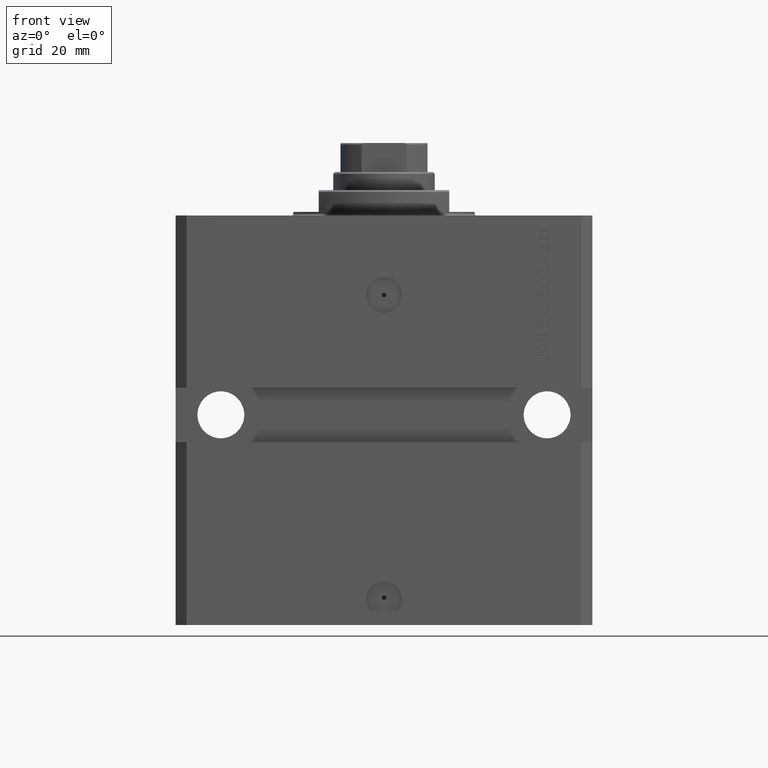
[diagram: clean part render]
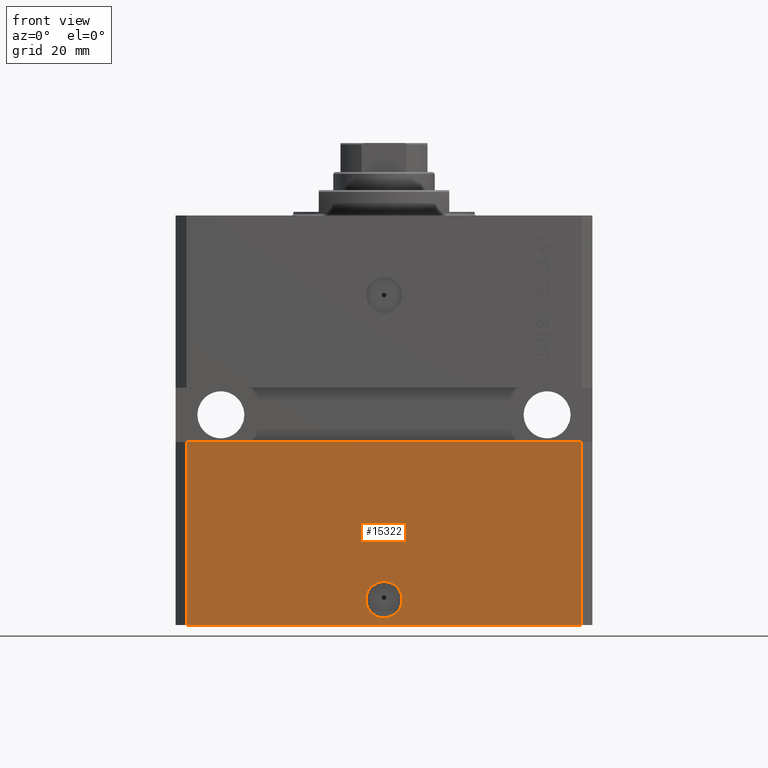
[diagram: same view with one face highlighted and labeled with its STEP entity id]
A machine part, front view. The second image highlights one B-rep face of the part: STEP entity #15322.
In plain terms, the highlighted planar face has unit normal (0, -1, 0).
Its self-contained STEP definition (entity closure, byte-faithful):
#12 = CARTESIAN_POINT ( 'NONE',  ( -54.50000000000000711, -45.00000000000000000, -62.50000000000000000 ) ) ;
#214 = EDGE_CURVE ( 'NONE', #34737, #48850, #43888, .T. ) ;
#240 = CARTESIAN_POINT ( 'NONE',  ( 54.50000000000000711, -44.99999999999998579, -113.0000000000000000 ) ) ;
#366 = AXIS2_PLACEMENT_3D ( 'NONE', #36530, #9662, #17367 ) ;
#2184 = ORIENTED_EDGE ( 'NONE', *, *, #2408, .F. ) ;
#2408 = EDGE_CURVE ( 'NONE', #8551, #21867, #33713, .T. ) ;
#2567 = EDGE_CURVE ( 'NONE', #10811, #48850, #19755, .T. ) ;
#5575 = EDGE_CURVE ( 'NONE', #8832, #34737, #10656, .T. ) ;
#6935 = CARTESIAN_POINT ( 'NONE',  ( -54.50000000000000711, -45.00000000000000000, -113.0000000000000000 ) ) ;
#7620 = VECTOR ( 'NONE', #11392, 1000.000000000000000 ) ;
#8363 = EDGE_LOOP ( 'NONE', ( #2184, #27729 ) ) ;
#8416 = EDGE_CURVE ( 'NONE', #8832, #10811, #30789, .T. ) ;
#8551 = VERTEX_POINT ( 'NONE', #12846 ) ;
#8832 = VERTEX_POINT ( 'NONE', #41774 ) ;
#9342 = ORIENTED_EDGE ( 'NONE', *, *, #214, .F. ) ;
#9662 = DIRECTION ( 'NONE',  ( 1.176083712526788232E-16, -1.000000000000000000, 0.000000000000000000 ) ) ;
#10656 = LINE ( 'NONE', #6935, #7620 ) ;
#10811 = VERTEX_POINT ( 'NONE', #240 ) ;
#11392 = DIRECTION ( 'NONE',  ( 0.000000000000000000, 0.000000000000000000, 1.000000000000000000 ) ) ;
#11765 = CARTESIAN_POINT ( 'NONE',  ( 5.729361939005967538E-15, -44.99999999999999289, -106.0000000000000000 ) ) ;
#12346 = EDGE_CURVE ( 'NONE', #21867, #8551, #21991, .T. ) ;
#12846 = CARTESIAN_POINT ( 'NONE',  ( 5.000000000000012434, -44.99999999999999289, -106.0000000000000000 ) ) ;
#15322 = ADVANCED_FACE ( 'NONE', ( #37057, #24602 ), #29327, .T. ) ;
#15909 = AXIS2_PLACEMENT_3D ( 'NONE', #21375, #20870, #29087 ) ;
#17367 = DIRECTION ( 'NONE',  ( 1.000000000000000000, 0.000000000000000000, 0.000000000000000000 ) ) ;
#18501 = ORIENTED_EDGE ( 'NONE', *, *, #8416, .T. ) ;
#19755 = LINE ( 'NONE', #38177, #24177 ) ;
#19933 = DIRECTION ( 'NONE',  ( 1.176083712526788232E-16, -1.000000000000000000, 0.000000000000000000 ) ) ;
#20870 = DIRECTION ( 'NONE',  ( 1.273191542001326317E-16, -1.000000000000000000, 0.000000000000000000 ) ) ;
#21375 = CARTESIAN_POINT ( 'NONE',  ( -54.50000000000000711, -45.00000000000000000, -113.0000000000000000 ) ) ;
#21867 = VERTEX_POINT ( 'NONE', #28221 ) ;
#21991 = CIRCLE ( 'NONE', #37914, 5.000000000000006217 ) ;
#23667 = DIRECTION ( 'NONE',  ( 1.000000000000000000, 0.000000000000000000, 0.000000000000000000 ) ) ;
#24177 = VECTOR ( 'NONE', #42883, 1000.000000000000000 ) ;
#24602 = FACE_OUTER_BOUND ( 'NONE', #36310, .T. ) ;
#25509 = CARTESIAN_POINT ( 'NONE',  ( 54.49999999999997868, -44.99999999999998579, -62.50000000000000000 ) ) ;
#27729 = ORIENTED_EDGE ( 'NONE', *, *, #12346, .F. ) ;
#28221 = CARTESIAN_POINT ( 'NONE',  ( -5.000000000000000000, -44.99999999999999289, -106.0000000000000000 ) ) ;
#29087 = DIRECTION ( 'NONE',  ( 1.000000000000000000, 1.273191542001326317E-16, 0.000000000000000000 ) ) ;
#29327 = PLANE ( 'NONE',  #15909 ) ;
#30789 = LINE ( 'NONE', #34270, #34555 ) ;
#31725 = CARTESIAN_POINT ( 'NONE',  ( -57.50000000000000711, -45.00000000000000000, -62.50000000000000000 ) ) ;
#33713 = CIRCLE ( 'NONE', #366, 5.000000000000006217 ) ;
#34270 = CARTESIAN_POINT ( 'NONE',  ( -54.50000000000000711, -45.00000000000000000, -113.0000000000000000 ) ) ;
#34555 = VECTOR ( 'NONE', #41487, 1000.000000000000000 ) ;
#34737 = VERTEX_POINT ( 'NONE', #12 ) ;
#36310 = EDGE_LOOP ( 'NONE', ( #9342, #41799, #18501, #40171 ) ) ;
#36530 = CARTESIAN_POINT ( 'NONE',  ( 5.729361939005967538E-15, -44.99999999999999289, -106.0000000000000000 ) ) ;
#37057 = FACE_BOUND ( 'NONE', #8363, .T. ) ;
#37914 = AXIS2_PLACEMENT_3D ( 'NONE', #11765, #19933, #23667 ) ;
#38177 = CARTESIAN_POINT ( 'NONE',  ( 54.50000000000000711, -44.99999999999998579, -113.0000000000000000 ) ) ;
#39922 = DIRECTION ( 'NONE',  ( 1.000000000000000000, 1.206764157201257045E-16, 0.000000000000000000 ) ) ;
#40171 = ORIENTED_EDGE ( 'NONE', *, *, #2567, .T. ) ;
#41487 = DIRECTION ( 'NONE',  ( 1.000000000000000000, 1.273191542001326317E-16, 0.000000000000000000 ) ) ;
#41774 = CARTESIAN_POINT ( 'NONE',  ( -54.50000000000000711, -45.00000000000000000, -113.0000000000000000 ) ) ;
#41799 = ORIENTED_EDGE ( 'NONE', *, *, #5575, .F. ) ;
#42883 = DIRECTION ( 'NONE',  ( 0.000000000000000000, 0.000000000000000000, 1.000000000000000000 ) ) ;
#43888 = LINE ( 'NONE', #31725, #46354 ) ;
#46354 = VECTOR ( 'NONE', #39922, 1000.000000000000000 ) ;
#48850 = VERTEX_POINT ( 'NONE', #25509 ) ;